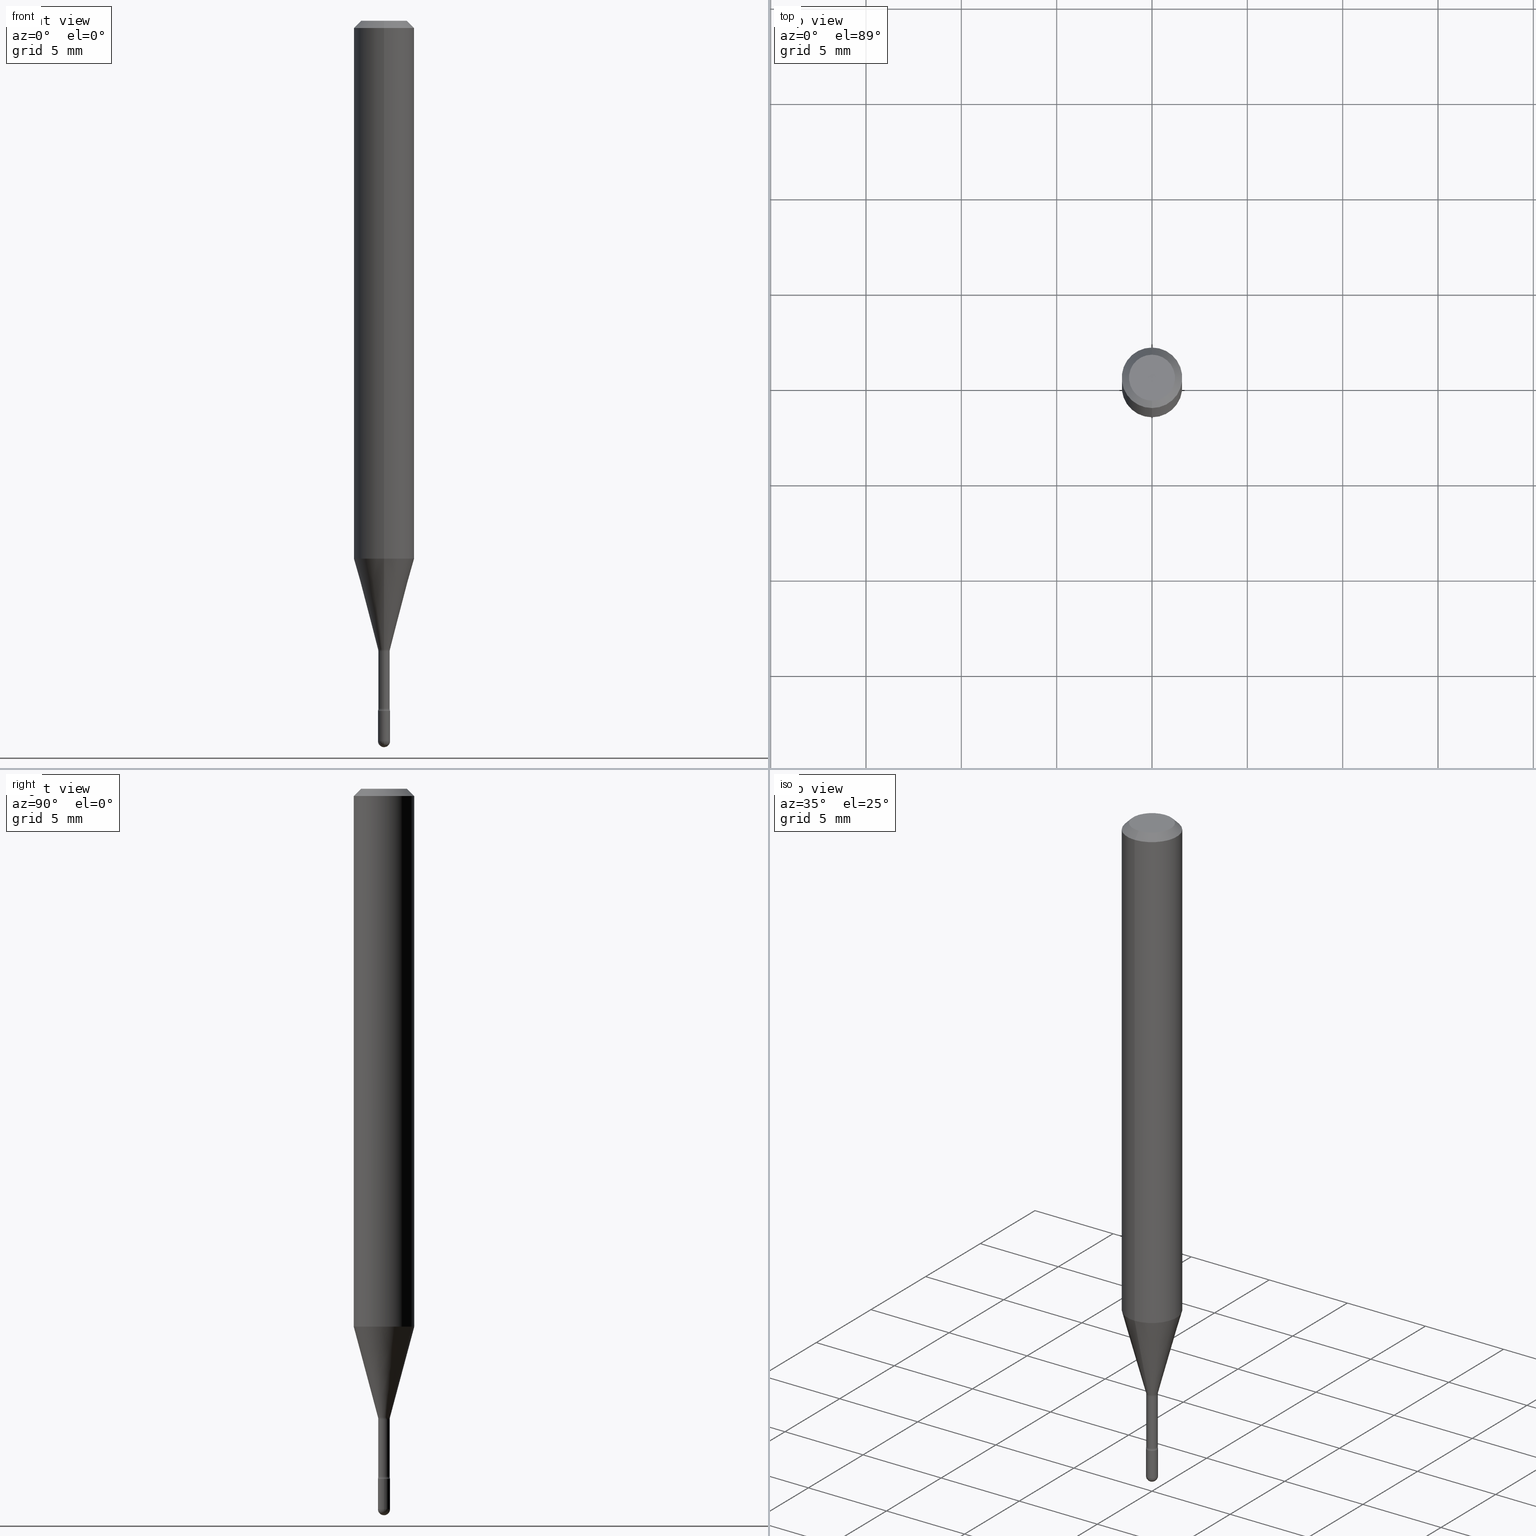
[diagram: canonical four-view strip — front | top / right | iso, engineering-drawing reading convention]
A machine part, canonical four-view strip (front | top / right | iso — engineering-drawing reading convention). The complete STEP part file that produces these views, byte-faithful:
ISO-10303-21;
HEADER;
FILE_DESCRIPTION (( 'STEP AP203' ),
    '1' );
FILE_NAME ('01586.STEP',
    '2024-04-09T20:07:38',
    ( '' ),
    ( '' ),
    'SwSTEP 2.0',
    'SolidWorks 2023',
    '' );
FILE_SCHEMA (( 'CONFIG_CONTROL_DESIGN' ));
ENDSEC;

DATA;
#1 = DIRECTION ( 'NONE',  ( -6.982962677686266711E-15, -1.000000000000000000, 3.491390890275590093E-15 ) ) ;
#2 = CARTESIAN_POINT ( 'NONE',  ( 4.440892098500895360E-16, 0.06249999999999610728, -1.110598421515880396 ) ) ;
#3 = DIRECTION ( 'NONE',  ( -6.982962677686265922E-15, -1.000000000000000000, 3.483106191921935554E-15 ) ) ;
#4 = ORIENTED_EDGE ( 'NONE', *, *, #453, .T. ) ;
#5 = DIMENSIONAL_EXPONENTS ( 1.000000000000000000, 0.000000000000000000, 0.000000000000000000, 0.000000000000000000, 0.000000000000000000, 0.000000000000000000, 0.000000000000000000 ) ;
#6 = CARTESIAN_POINT ( 'NONE',  ( -8.204981146277886678E-17, -0.01175000000000495266, -1.420316251501201332 ) ) ;
#7 = ORIENTED_EDGE ( 'NONE', *, *, #158, .T. ) ;
#8 = CIRCLE ( 'NONE', #242, 0.01500000000000002720 ) ;
#9 = CARTESIAN_POINT ( 'NONE',  ( 3.637634849200390463E-29, -5.193578491529179010E-15, -1.487499999999999822 ) ) ;
#10 = ORIENTED_EDGE ( 'NONE', *, *, #425, .F. ) ;
#11 = EDGE_CURVE ( 'NONE', #408, #24, #214, .T. ) ;
#12 = APPROVAL_PERSON_ORGANIZATION ( #198, #131, #325 ) ;
#13 = DIRECTION ( 'NONE',  ( -4.851104656540964275E-15, -0.7071067811865500152, -0.7071067811865450192 ) ) ;
#14 = DIRECTION ( 'NONE',  ( -1.000000000000000000, 6.982962677686266711E-15, -4.883557194083112901E-29 ) ) ;
#15 = CARTESIAN_POINT ( 'NONE',  ( -4.287811248607203282E-16, -0.06250000000000005551, -0.01499999999999986587 ) ) ;
#16 =( NAMED_UNIT ( * ) PLANE_ANGLE_UNIT ( ) SI_UNIT ( $, .RADIAN. ) );
#17 = ORIENTED_EDGE ( 'NONE', *, *, #522, .F. ) ;
#18 = AXIS2_PLACEMENT_3D ( 'NONE', #317, #497, #107 ) ;
#19 = LINE ( 'NONE', #306, #483 ) ;
#20 = TOROIDAL_SURFACE ( 'NONE', #402, 0.02674999999999999947, 0.01500000000000002373 ) ;
#21 = AXIS2_PLACEMENT_3D ( 'NONE', #187, #276, #531 ) ;
#22 = EDGE_CURVE ( 'NONE', #439, #367, #274, .T. ) ;
#23 = FACE_OUTER_BOUND ( 'NONE', #188, .T. ) ;
#24 = VERTEX_POINT ( 'NONE', #2 ) ;
#25 = DIRECTION ( 'NONE',  ( -6.982962677686269077E-15, -1.000000000000000000, 0.000000000000000000 ) ) ;
#26 = AXIS2_PLACEMENT_3D ( 'NONE', #523, #471, #476 ) ;
#27 = CARTESIAN_POINT ( 'NONE',  ( 3.473428794992355273E-29, -4.958879221801668349E-15, -1.420316251501201332 ) ) ;
#28 = VERTEX_POINT ( 'NONE', #144 ) ;
#29 = EDGE_LOOP ( 'NONE', ( #349, #398, #448, #264, #442 ) ) ;
#30 = CYLINDRICAL_SURFACE ( 'NONE', #428, 0.06250000000000000000 ) ;
#31 = TOROIDAL_SURFACE ( 'NONE', #128, 0.02675000000000001335, 0.01500000000000001679 ) ;
#32 = PERSON_AND_ORGANIZATION_ROLE ( 'design_owner' ) ;
#33 = CARTESIAN_POINT ( 'NONE',  ( 8.881784197004742293E-17, 0.01249999999999503418, -1.425000000000000266 ) ) ;
#34 = CALENDAR_DATE ( 2024, 9, 4 ) ;
#35 = DIRECTION ( 'NONE',  ( -6.982962677686265133E-15, -1.000000000000000000, 0.000000000000000000 ) ) ;
#36 = COORDINATED_UNIVERSAL_TIME_OFFSET ( 5, 0, .BEHIND. ) ;
#37 = CARTESIAN_POINT ( 'NONE',  ( 0.000000000000000000, 0.000000000000000000, 0.000000000000000000 ) ) ;
#38 = AXIS2_PLACEMENT_3D ( 'NONE', #383, #555, #120 ) ;
#39 = EDGE_CURVE ( 'NONE', #518, #511, #492, .T. ) ;
#40 = PERSON_AND_ORGANIZATION_ROLE ( 'classification_officer' ) ;
#41 = FACE_OUTER_BOUND ( 'NONE', #215, .T. ) ;
#42 = AXIS2_PLACEMENT_3D ( 'NONE', #83, #350, #3 ) ;
#43 = CARTESIAN_POINT ( 'NONE',  ( 3.183938729182273285E-29, -4.545820674074166863E-15, -1.301974787463811012 ) ) ;
#44 = DIRECTION ( 'NONE',  ( -2.445531966082285698E-29, 3.491390890275590093E-15, 1.000000000000000000 ) ) ;
#45 = FACE_OUTER_BOUND ( 'NONE', #374, .T. ) ;
#46 = EDGE_LOOP ( 'NONE', ( #300, #346, #401, #136 ) ) ;
#47 = ADVANCED_FACE ( 'NONE', ( #535 ), #20, .F. ) ;
#48 = CC_DESIGN_PERSON_AND_ORGANIZATION_ASSIGNMENT ( #68, #80, ( #153 ) ) ;
#49 = EDGE_LOOP ( 'NONE', ( #146, #305, #63, #468 ) ) ;
#50 = CIRCLE ( 'NONE', #376, 0.01250000000000000243 ) ;
#51 = SPHERICAL_SURFACE ( 'NONE', #73, 0.01249999999999996947 ) ;
#52 = APPROVAL_PERSON_ORGANIZATION ( #382, #69, #111 ) ;
#53 = CIRCLE ( 'NONE', #124, 0.06250000000000000000 ) ;
#54 = DIRECTION ( 'NONE',  ( 6.982962677686265922E-15, 1.000000000000000000, -3.483106191921935554E-15 ) ) ;
#55 =( CONVERSION_BASED_UNIT ( 'INCH', #318 ) LENGTH_UNIT ( ) NAMED_UNIT ( #5 ) );
#56 = EDGE_CURVE ( 'NONE', #275, #534, #499, .T. ) ;
#57 = DIRECTION ( 'NONE',  ( 1.000000000000000000, -6.982962677686292743E-15, 0.000000000000000000 ) ) ;
#58 = DIRECTION ( 'NONE',  ( -6.982962677686265922E-15, -1.000000000000000000, 0.000000000000000000 ) ) ;
#59 = ORIENTED_EDGE ( 'NONE', *, *, #243, .F. ) ;
#60 = AXIS2_PLACEMENT_3D ( 'NONE', #112, #505, #35 ) ;
#61 = DIRECTION ( 'NONE',  ( -2.445531966082285698E-29, 3.491390890275590093E-15, 1.000000000000000000 ) ) ;
#62 = CARTESIAN_POINT ( 'NONE',  ( 3.473428794992355273E-29, -4.958879221801668349E-15, -1.420316251501201332 ) ) ;
#63 = ORIENTED_EDGE ( 'NONE', *, *, #81, .T. ) ;
#64 = FACE_OUTER_BOUND ( 'NONE', #268, .T. ) ;
#65 = AXIS2_PLACEMENT_3D ( 'NONE', #390, #84, #251 ) ;
#66 = DATE_AND_TIME ( #34, #395 ) ;
#67 = LINE ( 'NONE', #70, #365 ) ;
#68 = PERSON_AND_ORGANIZATION ( #429, #552 ) ;
#69 = APPROVAL ( #554, 'UNSPECIFIED' ) ;
#70 = CARTESIAN_POINT ( 'NONE',  ( -8.204981146281360131E-17, -0.01174999999999999656, 5.190972418519841920E-16 ) ) ;
#71 = CIRCLE ( 'NONE', #185, 0.01250000000000000069 ) ;
#72 = CARTESIAN_POINT ( 'NONE',  ( 1.900701818158585969E-16, 0.02674999999999545450, -1.301974787463811012 ) ) ;
#73 = AXIS2_PLACEMENT_3D ( 'NONE', #271, #14, #311 ) ;
#74 = APPROVAL_DATE_TIME ( #164, #69 ) ;
#75 = AXIS2_PLACEMENT_3D ( 'NONE', #222, #417, #25 ) ;
#76 = ADVANCED_FACE ( 'NONE', ( #141 ), #358, .T. ) ;
#77 = DIRECTION ( 'NONE',  ( -6.982962677686265922E-15, -1.000000000000000000, 3.491390890275588910E-15 ) ) ;
#78 = EDGE_CURVE ( 'NONE', #530, #408, #327, .T. ) ;
#79 = VERTEX_POINT ( 'NONE', #266 ) ;
#80 = PERSON_AND_ORGANIZATION_ROLE ( 'creator' ) ;
#81 = EDGE_CURVE ( 'NONE', #530, #127, #484, .T. ) ;
#82 = AXIS2_PLACEMENT_3D ( 'NONE', #43, #247, #1 ) ;
#83 = CARTESIAN_POINT ( 'NONE',  ( 3.668297949123448778E-31, -5.237086335413414672E-17, -0.01500000000000008271 ) ) ;
#84 = DIRECTION ( 'NONE',  ( -2.445468806185136597E-29, 3.491481338843145583E-15, 1.000000000000000000 ) ) ;
#85 = AXIS2_PLACEMENT_3D ( 'NONE', #457, #109, #57 ) ;
#86 = ORIENTED_EDGE ( 'NONE', *, *, #501, .F. ) ;
#87 = PLANE ( 'NONE',  #206 ) ;
#88 = ORIENTED_EDGE ( 'NONE', *, *, #90, .T. ) ;
#89 = CIRCLE ( 'NONE', #380, 0.01174999999999999482 ) ;
#90 = EDGE_CURVE ( 'NONE', #127, #24, #53, .T. ) ;
#91 = CC_DESIGN_PERSON_AND_ORGANIZATION_ASSIGNMENT ( #557, #40, ( #189 ) ) ;
#92 = CYLINDRICAL_SURFACE ( 'NONE', #161, 0.01174999999999999656 ) ;
#93 = ORIENTED_EDGE ( 'NONE', *, *, #297, .T. ) ;
#94 = CARTESIAN_POINT ( 'NONE',  ( 3.668737688208442503E-29, -5.236456604015251240E-15, -1.500000000000000222 ) ) ;
#95 = AXIS2_PLACEMENT_3D ( 'NONE', #458, #558, #199 ) ;
#96 = CARTESIAN_POINT ( 'NONE',  ( -1.169113584055446105E-44, 1.669184350826100908E-30, 4.780733988912460139E-16 ) ) ;
#97 = DIRECTION ( 'NONE',  ( -6.982962677686265922E-15, -1.000000000000000000, 0.000000000000000000 ) ) ;
#98 = ORIENTED_EDGE ( 'NONE', *, *, #297, .F. ) ;
#99 = AXIS2_PLACEMENT_3D ( 'NONE', #564, #44, #400 ) ;
#100 = DIRECTION ( 'NONE',  ( 1.839019923739600315E-15, 0.2588190451025249583, 0.9659258262890670910 ) ) ;
#101 = DIRECTION ( 'NONE',  ( 1.000000000000000000, -6.982962677686292743E-15, 0.000000000000000000 ) ) ;
#102 = ORIENTED_EDGE ( 'NONE', *, *, #338, .T. ) ;
#103 = DIRECTION ( 'NONE',  ( -2.445531966082285698E-29, 3.491390890275590093E-15, 1.000000000000000000 ) ) ;
#104 = ADVANCED_FACE ( 'NONE', ( #449 ), #396, .T. ) ;
#105 = FACE_OUTER_BOUND ( 'NONE', #389, .T. ) ;
#106 = ORIENTED_EDGE ( 'NONE', *, *, #291, .T. ) ;
#107 = DIRECTION ( 'NONE',  ( -6.982962677686265133E-15, -1.000000000000000000, 0.000000000000000000 ) ) ;
#108 = ORIENTED_EDGE ( 'NONE', *, *, #356, .F. ) ;
#109 = DIRECTION ( 'NONE',  ( -2.445468806185136597E-29, 3.491481338843145583E-15, 1.000000000000000000 ) ) ;
#110 = PRODUCT_RELATED_PRODUCT_CATEGORY ( 'detail', '', ( #463 ) ) ;
#111 = APPROVAL_ROLE ( '' ) ;
#112 = CARTESIAN_POINT ( 'NONE',  ( 3.174526708052502707E-29, -4.532148335475136049E-15, -1.298092501787273090 ) ) ;
#113 = DIRECTION ( 'NONE',  ( -2.445531966082285698E-29, 3.491390890275590093E-15, 1.000000000000000000 ) ) ;
#114 = ORIENTED_EDGE ( 'NONE', *, *, #543, .T. ) ;
#115 = DATE_AND_TIME ( #336, #489 ) ;
#116 = EDGE_CURVE ( 'NONE', #534, #280, #50, .T. ) ;
#117 = CYLINDRICAL_SURFACE ( 'NONE', #434, 0.01250000000000000243 ) ;
#118 = AXIS2_PLACEMENT_3D ( 'NONE', #211, #528, #431 ) ;
#119 = COORDINATED_UNIVERSAL_TIME_OFFSET ( 5, 0, .BEHIND. ) ;
#120 = DIRECTION ( 'NONE',  ( -6.982962677686266711E-15, -1.000000000000000000, 3.491390890275590487E-15 ) ) ;
#121 = ORIENTED_EDGE ( 'NONE', *, *, #432, .F. ) ;
#122 = CARTESIAN_POINT ( 'NONE',  ( 3.473339087963991292E-29, -4.959007687372092628E-15, -1.420316251501201332 ) ) ;
#123 = AXIS2_PLACEMENT_3D ( 'NONE', #176, #406, #447 ) ;
#124 = AXIS2_PLACEMENT_3D ( 'NONE', #182, #61, #446 ) ;
#125 = DIRECTION ( 'NONE',  ( 1.000000000000000000, -6.982962677686265922E-15, 4.883557194083112340E-29 ) ) ;
#126 = DIRECTION ( 'NONE',  ( -2.445531966082285698E-29, 3.491390890275590093E-15, 1.000000000000000000 ) ) ;
#127 = VERTEX_POINT ( 'NONE', #231 ) ;
#128 = AXIS2_PLACEMENT_3D ( 'NONE', #302, #479, #397 ) ;
#129 = PLANE ( 'NONE',  #26 ) ;
#130 = ORIENTED_EDGE ( 'NONE', *, *, #453, .F. ) ;
#131 = APPROVAL ( #559, 'UNSPECIFIED' ) ;
#132 = FACE_OUTER_BOUND ( 'NONE', #482, .T. ) ;
#133 = EDGE_CURVE ( 'NONE', #280, #486, #260, .T. ) ;
#134 =( GEOMETRIC_REPRESENTATION_CONTEXT ( 3 ) GLOBAL_UNCERTAINTY_ASSIGNED_CONTEXT ( ( #233 ) ) GLOBAL_UNIT_ASSIGNED_CONTEXT ( ( #55, #16, #142 ) ) REPRESENTATION_CONTEXT ( 'NONE', 'WORKASPACE' ) );
#135 = MANIFOLD_SOLID_BREP ( 'Body-Move/Copy2[1]', #549 ) ;
#136 = ORIENTED_EDGE ( 'NONE', *, *, #392, .T. ) ;
#137 = DIRECTION ( 'NONE',  ( 1.000000000000000000, -6.982962677686292743E-15, 0.000000000000000000 ) ) ;
#138 = CARTESIAN_POINT ( 'NONE',  ( 3.668297949123448778E-31, -5.237086335413414672E-17, -0.01500000000000008271 ) ) ;
#139 = VECTOR ( 'NONE', #168, 39.37007874015748143 ) ;
#140 = VERTEX_POINT ( 'NONE', #372 ) ;
#141 = FACE_OUTER_BOUND ( 'NONE', #46, .T. ) ;
#142 =( NAMED_UNIT ( * ) SI_UNIT ( $, .STERADIAN. ) SOLID_ANGLE_UNIT ( ) );
#143 = ORIENTED_EDGE ( 'NONE', *, *, #303, .T. ) ;
#144 = CARTESIAN_POINT ( 'NONE',  ( 3.840629472727447874E-16, 0.04749999999999999362, -2.485923956665947374E-16 ) ) ;
#145 = MECHANICAL_CONTEXT ( 'NONE', #491, 'mechanical' ) ;
#146 = ORIENTED_EDGE ( 'NONE', *, *, #11, .F. ) ;
#147 = FACE_OUTER_BOUND ( 'NONE', #49, .T. ) ;
#148 = CARTESIAN_POINT ( 'NONE',  ( 3.484793048813820547E-29, -4.975360907851483175E-15, -1.425000000000000266 ) ) ;
#149 = ORIENTED_EDGE ( 'NONE', *, *, #291, .F. ) ;
#150 = CC_DESIGN_DATE_AND_TIME_ASSIGNMENT ( #379, #159, ( #189 ) ) ;
#151 = CARTESIAN_POINT ( 'NONE',  ( 3.637634849200391024E-29, -5.193578491529179010E-15, -1.487500000000000266 ) ) ;
#152 = CARTESIAN_POINT ( 'NONE',  ( 4.364351673553919652E-16, 0.06249999999999995143, -0.01500000000000030129 ) ) ;
#153 = PRODUCT_DEFINITION_FORMATION_WITH_SPECIFIED_SOURCE ( 'ANY', '', #463, .NOT_KNOWN. ) ;
#154 = AXIS2_PLACEMENT_3D ( 'NONE', #454, #103, #443 ) ;
#155 = COORDINATED_UNIVERSAL_TIME_OFFSET ( 5, 0, .BEHIND. ) ;
#156 = CARTESIAN_POINT ( 'NONE',  ( 3.184020961775939408E-29, -4.545702912319647815E-15, -1.301974787463811012 ) ) ;
#157 = ORIENTED_EDGE ( 'NONE', *, *, #22, .T. ) ;
#158 = EDGE_CURVE ( 'NONE', #530, #212, #480, .T. ) ;
#159 = DATE_TIME_ROLE ( 'classification_date' ) ;
#160 = DIRECTION ( 'NONE',  ( -2.445531966082285698E-29, 3.491390890275590093E-15, 1.000000000000000000 ) ) ;
#161 = AXIS2_PLACEMENT_3D ( 'NONE', #246, #526, #347 ) ;
#162 = CARTESIAN_POINT ( 'NONE',  ( 3.484793048813820547E-29, -4.975360907851483175E-15, -1.425000000000000266 ) ) ;
#163 = CC_DESIGN_APPROVAL ( #69, ( #153 ) ) ;
#164 = DATE_AND_TIME ( #289, #357 ) ;
#165 = DIRECTION ( 'NONE',  ( 1.000000000000000000, -7.105427357601001070E-15, 4.926314400866594690E-29 ) ) ;
#166 = CC_DESIGN_DATE_AND_TIME_ASSIGNMENT ( #115, #515, ( #248 ) ) ;
#167 = AXIS2_PLACEMENT_3D ( 'NONE', #203, #348, #343 ) ;
#168 = DIRECTION ( 'NONE',  ( 4.937700262164548042E-15, 0.7071067811865451302, -0.7071067811865499042 ) ) ;
#169 = DIRECTION ( 'NONE',  ( 6.982962677686265922E-15, 1.000000000000000000, 0.000000000000000000 ) ) ;
#170 = EDGE_CURVE ( 'NONE', #127, #511, #19, .T. ) ;
#171 = ORIENTED_EDGE ( 'NONE', *, *, #133, .F. ) ;
#172 = VECTOR ( 'NONE', #331, 39.37007874015748143 ) ;
#173 = DIRECTION ( 'NONE',  ( -6.982962677686266711E-15, -1.000000000000000000, 3.491390890275590093E-15 ) ) ;
#174 = VECTOR ( 'NONE', #13, 39.37007874015748143 ) ;
#175 = ORIENTED_EDGE ( 'NONE', *, *, #541, .F. ) ;
#176 = CARTESIAN_POINT ( 'NONE',  ( 3.484793048813820547E-29, -4.975360907851483175E-15, -1.425000000000000266 ) ) ;
#177 = ORIENTED_EDGE ( 'NONE', *, *, #399, .F. ) ;
#178 = AXIS2_PLACEMENT_3D ( 'NONE', #138, #184, #362 ) ;
#179 = AXIS2_PLACEMENT_3D ( 'NONE', #219, #322, #101 ) ;
#180 = FACE_OUTER_BOUND ( 'NONE', #210, .T. ) ;
#181 = CARTESIAN_POINT ( 'NONE',  ( -3.773273898774340269E-16, -0.04749999999999999362, 8.308973890958629777E-17 ) ) ;
#182 = CARTESIAN_POINT ( 'NONE',  ( 2.716003941297613379E-29, -3.877533211634993835E-15, -1.110598421515880174 ) ) ;
#183 = ADVANCED_FACE ( 'NONE', ( #180 ), #226, .T. ) ;
#184 = DIRECTION ( 'NONE',  ( -2.445531966082285698E-29, 3.491390890275590093E-15, 1.000000000000000000 ) ) ;
#185 = AXIS2_PLACEMENT_3D ( 'NONE', #162, #237, #335 ) ;
#186 = ORIENTED_EDGE ( 'NONE', *, *, #244, .T. ) ;
#187 = CARTESIAN_POINT ( 'NONE',  ( 3.668297949123448778E-31, -5.237086335413414672E-17, -0.01500000000000008271 ) ) ;
#188 = EDGE_LOOP ( 'NONE', ( #98, #256, #413, #323 ) ) ;
#189 = SECURITY_CLASSIFICATION ( '', '', #422 ) ;
#190 = DIRECTION ( 'NONE',  ( -2.445531966082285698E-29, 3.491390890275590093E-15, 1.000000000000000000 ) ) ;
#191 = EDGE_CURVE ( 'NONE', #534, #79, #368, .T. ) ;
#192 = CC_DESIGN_PERSON_AND_ORGANIZATION_ASSIGNMENT ( #467, #32, ( #463 ) ) ;
#193 = ORIENTED_EDGE ( 'NONE', *, *, #329, .T. ) ;
#194 = CARTESIAN_POINT ( 'NONE',  ( -8.204981146278178803E-17, -0.01175000000000454674, -1.301974787463811012 ) ) ;
#195 = CARTESIAN_POINT ( 'NONE',  ( 3.484883051667257470E-29, -4.975232018642717302E-15, -1.425000000000000266 ) ) ;
#196 = CALENDAR_DATE ( 2024, 9, 4 ) ;
#197 = DIRECTION ( 'NONE',  ( -2.445531966082285698E-29, 3.491390890275590093E-15, 1.000000000000000000 ) ) ;
#198 = PERSON_AND_ORGANIZATION ( #429, #552 ) ;
#199 = DIRECTION ( 'NONE',  ( -6.982962677686265133E-15, -1.000000000000000000, 0.000000000000000000 ) ) ;
#200 = CARTESIAN_POINT ( 'NONE',  ( -1.169113584055446105E-44, 1.669184350826100908E-30, 4.780733988912460139E-16 ) ) ;
#201 = APPROVAL_DATE_TIME ( #285, #418 ) ;
#202 = CIRCLE ( 'NONE', #178, 0.06250000000000000000 ) ;
#203 = CARTESIAN_POINT ( 'NONE',  ( 2.024012138521078874E-45, -2.888739930047974464E-31, -8.275132837850420749E-17 ) ) ;
#204 = ADVANCED_FACE ( 'NONE', ( #147 ), #236, .T. ) ;
#205 = FACE_OUTER_BOUND ( 'NONE', #416, .T. ) ;
#206 = AXIS2_PLACEMENT_3D ( 'NONE', #299, #435, #207 ) ;
#207 = DIRECTION ( 'NONE',  ( 6.982962677686265922E-15, 1.000000000000000000, -3.491390890275590093E-15 ) ) ;
#208 = ADVANCED_FACE ( 'NONE', ( #64 ), #548, .T. ) ;
#209 = FACE_OUTER_BOUND ( 'NONE', #213, .T. ) ;
#210 = EDGE_LOOP ( 'NONE', ( #17, #238, #452, #430 ) ) ;
#211 = CARTESIAN_POINT ( 'NONE',  ( 2.716003941297613379E-29, -3.877533211634993835E-15, -1.110598421515880174 ) ) ;
#212 = VERTEX_POINT ( 'NONE', #194 ) ;
#213 = EDGE_LOOP ( 'NONE', ( #414, #309, #514, #314 ) ) ;
#214 = LINE ( 'NONE', #487, #321 ) ;
#215 = EDGE_LOOP ( 'NONE', ( #355, #143, #342, #500, #503 ) ) ;
#216 = AXIS2_PLACEMENT_3D ( 'NONE', #122, #126, #173 ) ;
#217 = VECTOR ( 'NONE', #375, 39.37007874015748143 ) ;
#218 = EDGE_CURVE ( 'NONE', #439, #212, #67, .T. ) ;
#219 = CARTESIAN_POINT ( 'NONE',  ( 3.637634849200390463E-29, -5.193578491529179010E-15, -1.487499999999999822 ) ) ;
#220 = CARTESIAN_POINT ( 'NONE',  ( 3.184020961775939408E-29, -4.545702912319647815E-15, -1.301974787463811012 ) ) ;
#221 = ORIENTED_EDGE ( 'NONE', *, *, #81, .F. ) ;
#222 = CARTESIAN_POINT ( 'NONE',  ( -1.867942516280757616E-16, -0.02675000000000454445, -1.301974787463811012 ) ) ;
#223 = DIRECTION ( 'NONE',  ( 1.000000000000000000, -6.982962677686265922E-15, 4.876176775795935793E-29 ) ) ;
#224 = CIRCLE ( 'NONE', #272, 0.01250000000000000069 ) ;
#225 = EDGE_LOOP ( 'NONE', ( #130, #445, #477, #108 ) ) ;
#226 = CYLINDRICAL_SURFACE ( 'NONE', #249, 0.06250000000000000000 ) ;
#227 = ADVANCED_FACE ( 'NONE', ( #510 ), #117, .T. ) ;
#228 = CARTESIAN_POINT ( 'NONE',  ( 4.440892098500625669E-16, 0.06250000000000000000, 2.598614682490216824E-16 ) ) ;
#229 = EDGE_LOOP ( 'NONE', ( #59, #193, #273, #344 ) ) ;
#230 = AXIS2_PLACEMENT_3D ( 'NONE', #62, #536, #97 ) ;
#231 = CARTESIAN_POINT ( 'NONE',  ( -4.364351673553644537E-16, -0.06250000000000387190, -1.110598421515879952 ) ) ;
#232 = CALENDAR_DATE ( 2024, 9, 4 ) ;
#233 = UNCERTAINTY_MEASURE_WITH_UNIT (LENGTH_MEASURE( 1.000000000000000082E-05 ), #55, 'distance_accuracy_value', 'NONE');
#234 = DIRECTION ( 'NONE',  ( -2.445468806185136597E-29, 3.491481338843145583E-15, 1.000000000000000000 ) ) ;
#235 = PERSON_AND_ORGANIZATION_ROLE ( 'design_supplier' ) ;
#236 = CONICAL_SURFACE ( 'NONE', #18, 0.01226111260566398187, 0.2617993877991502960 ) ;
#237 = DIRECTION ( 'NONE',  ( -2.445468806185136597E-29, 3.491481338843145583E-15, 1.000000000000000000 ) ) ;
#238 = ORIENTED_EDGE ( 'NONE', *, *, #465, .T. ) ;
#239 = DIRECTION ( 'NONE',  ( 7.105427357600997914E-15, 1.000000000000000000, 0.000000000000000000 ) ) ;
#240 = CARTESIAN_POINT ( 'NONE',  ( -0.01250000000000000243, 8.881784197001254049E-17, -6.148668862818633278E-31 ) ) ;
#241 = SHAPE_DEFINITION_REPRESENTATION ( #287, #563 ) ;
#242 = AXIS2_PLACEMENT_3D ( 'NONE', #72, #283, #239 ) ;
#243 = EDGE_CURVE ( 'NONE', #408, #530, #307, .T. ) ;
#244 = EDGE_CURVE ( 'NONE', #547, #79, #71, .T. ) ;
#245 = AXIS2_PLACEMENT_3D ( 'NONE', #310, #539, #54 ) ;
#246 = CARTESIAN_POINT ( 'NONE',  ( -1.169113584055446105E-44, 1.669184350826100908E-30, 4.780733988912460139E-16 ) ) ;
#247 = DIRECTION ( 'NONE',  ( -2.445531966082285698E-29, 3.491390890275590093E-15, 1.000000000000000000 ) ) ;
#248 = PRODUCT_DEFINITION ( 'UNKNOWN', '', #153, #538 ) ;
#249 = AXIS2_PLACEMENT_3D ( 'NONE', #96, #315, #262 ) ;
#250 = CLOSED_SHELL ( 'NONE', ( #47, #469, #377, #104, #269, #337, #204, #183, #76, #384, #455, #475, #409, #437 ) ) ;
#251 = DIRECTION ( 'NONE',  ( 1.000000000000000000, -6.982962677686267499E-15, 4.876176775795936353E-29 ) ) ;
#252 = VERTEX_POINT ( 'NONE', #33 ) ;
#253 = CC_DESIGN_APPROVAL ( #131, ( #248 ) ) ;
#254 = EDGE_LOOP ( 'NONE', ( #88, #537, #86, #490 ) ) ;
#255 = FACE_OUTER_BOUND ( 'NONE', #332, .T. ) ;
#256 = ORIENTED_EDGE ( 'NONE', *, *, #425, .T. ) ;
#257 = CIRCLE ( 'NONE', #167, 0.04749999999999999362 ) ;
#258 = EDGE_CURVE ( 'NONE', #419, #212, #334, .T. ) ;
#259 = LINE ( 'NONE', #228, #340 ) ;
#260 = CIRCLE ( 'NONE', #85, 0.01250000000000000243 ) ;
#261 = EDGE_LOOP ( 'NONE', ( #520, #527, #293, #404 ) ) ;
#262 = DIRECTION ( 'NONE',  ( -6.982962677686265922E-15, -1.000000000000000000, 3.491390890275588910E-15 ) ) ;
#263 = DIRECTION ( 'NONE',  ( 1.000000000000000000, -6.982962677686292743E-15, 0.000000000000000000 ) ) ;
#264 = ORIENTED_EDGE ( 'NONE', *, *, #191, .T. ) ;
#265 = APPROVAL_PERSON_ORGANIZATION ( #330, #418, #341 ) ;
#266 = CARTESIAN_POINT ( 'NONE',  ( 0.01250000000000000069, -5.062647941322562298E-15, -1.425000000000000266 ) ) ;
#267 = DIRECTION ( 'NONE',  ( 0.000000000000000000, 0.000000000000000000, 1.000000000000000000 ) ) ;
#268 = EDGE_LOOP ( 'NONE', ( #10, #93, #363, #171 ) ) ;
#269 = ADVANCED_FACE ( 'NONE', ( #381 ), #30, .T. ) ;
#270 = DIRECTION ( 'NONE',  ( -2.445531966082285698E-29, 3.491390890275590093E-15, 1.000000000000000000 ) ) ;
#271 = CARTESIAN_POINT ( 'NONE',  ( 3.637634849200391024E-29, -5.193578491529179010E-15, -1.487500000000000266 ) ) ;
#272 = AXIS2_PLACEMENT_3D ( 'NONE', #195, #113, #328 ) ;
#273 = ORIENTED_EDGE ( 'NONE', *, *, #258, .T. ) ;
#274 = CIRCLE ( 'NONE', #282, 0.01500000000000001853 ) ;
#275 = VERTEX_POINT ( 'NONE', #286 ) ;
#276 = DIRECTION ( 'NONE',  ( 2.445531966082285698E-29, -3.491390890275590093E-15, -1.000000000000000000 ) ) ;
#277 = DIRECTION ( 'NONE',  ( 6.982962677686266711E-15, 1.000000000000000000, 0.000000000000000000 ) ) ;
#278 = COORDINATED_UNIVERSAL_TIME_OFFSET ( 5, 0, .BEHIND. ) ;
#279 = DIRECTION ( 'NONE',  ( -6.982962677686265922E-15, -1.000000000000000000, 0.000000000000000000 ) ) ;
#280 = VERTEX_POINT ( 'NONE', #553 ) ;
#281 = CIRCLE ( 'NONE', #42, 0.06250000000000000000 ) ;
#282 = AXIS2_PLACEMENT_3D ( 'NONE', #405, #361, #394 ) ;
#283 = DIRECTION ( 'NONE',  ( 1.000000000000000000, -7.105427357601001070E-15, 4.926314400866594690E-29 ) ) ;
#284 = VERTEX_POINT ( 'NONE', #550 ) ;
#285 = DATE_AND_TIME ( #232, #561 ) ;
#286 = CARTESIAN_POINT ( 'NONE',  ( -8.881784196997603102E-17, -0.01250000000000517884, -1.487499999999999822 ) ) ;
#287 = PRODUCT_DEFINITION_SHAPE ( 'NONE', 'NONE',  #248 ) ;
#288 = ORIENTED_EDGE ( 'NONE', *, *, #22, .F. ) ;
#289 = CALENDAR_DATE ( 2024, 9, 4 ) ;
#290 = CARTESIAN_POINT ( 'NONE',  ( 8.348877145181173506E-17, 0.01174999999999999656, 4.370495559305079345E-16 ) ) ;
#291 = EDGE_CURVE ( 'NONE', #252, #367, #224, .T. ) ;
#292 = CYLINDRICAL_SURFACE ( 'NONE', #65, 0.01250000000000000243 ) ;
#293 = ORIENTED_EDGE ( 'NONE', *, *, #543, .F. ) ;
#294 = DIRECTION ( 'NONE',  ( -2.445531966082285698E-29, 3.491390890275590093E-15, 1.000000000000000000 ) ) ;
#295 = CARTESIAN_POINT ( 'NONE',  ( -0.01250000000000000243, -4.995651857720318490E-15, -1.487499999999999822 ) ) ;
#296 = ORIENTED_EDGE ( 'NONE', *, *, #432, .T. ) ;
#297 = EDGE_CURVE ( 'NONE', #524, #275, #474, .T. ) ;
#298 = VECTOR ( 'NONE', #545, 39.37007874015748143 ) ;
#299 = CARTESIAN_POINT ( 'NONE',  ( 3.316907271900976096E-16, 0.04749999999999999362, 3.181996796828036098E-17 ) ) ;
#300 = ORIENTED_EDGE ( 'NONE', *, *, #39, .F. ) ;
#301 = CIRCLE ( 'NONE', #123, 0.01250000000000000069 ) ;
#302 = CARTESIAN_POINT ( 'NONE',  ( 3.473339087963991292E-29, -4.959007687372092628E-15, -1.420316251501201332 ) ) ;
#303 = EDGE_CURVE ( 'NONE', #486, #547, #513, .T. ) ;
#304 = PLANE ( 'NONE',  #478 ) ;
#305 = ORIENTED_EDGE ( 'NONE', *, *, #243, .T. ) ;
#306 = CARTESIAN_POINT ( 'NONE',  ( -4.364351673553916201E-16, -0.06250000000000000000, 6.962853295334703947E-16 ) ) ;
#307 = CIRCLE ( 'NONE', #60, 0.01226111260566398187 ) ;
#308 = DIRECTION ( 'NONE',  ( -2.438088387897960049E-29, 3.491481338843145188E-15, 1.000000000000000000 ) ) ;
#309 = ORIENTED_EDGE ( 'NONE', *, *, #541, .T. ) ;
#310 = CARTESIAN_POINT ( 'NONE',  ( 3.668297949123448778E-31, -5.237086335413414672E-17, -0.01500000000000008271 ) ) ;
#311 = DIRECTION ( 'NONE',  ( 6.982962677686266711E-15, 1.000000000000000000, 0.000000000000000000 ) ) ;
#312 = TOROIDAL_SURFACE ( 'NONE', #216, 0.02675000000000001335, 0.01500000000000001679 ) ;
#313 = CC_DESIGN_PERSON_AND_ORGANIZATION_ASSIGNMENT ( #509, #426, ( #248 ) ) ;
#314 = ORIENTED_EDGE ( 'NONE', *, *, #258, .F. ) ;
#315 = DIRECTION ( 'NONE',  ( -2.445531966082285698E-29, 3.491390890275590093E-15, 1.000000000000000000 ) ) ;
#316 = ORIENTED_EDGE ( 'NONE', *, *, #329, .F. ) ;
#317 = CARTESIAN_POINT ( 'NONE',  ( 3.174526708052502707E-29, -4.532148335475136049E-15, -1.298092501787273090 ) ) ;
#318 = LENGTH_MEASURE_WITH_UNIT ( LENGTH_MEASURE( 0.02539999999999999897 ), #373 );
#319 = CONICAL_SURFACE ( 'NONE', #95, 0.01226111260566398187, 0.2617993877991502960 ) ;
#320 = ORIENTED_EDGE ( 'NONE', *, *, #496, .T. ) ;
#321 = VECTOR ( 'NONE', #100, 39.37007874015748143 ) ;
#322 = DIRECTION ( 'NONE',  ( -2.445468806185136597E-29, 3.491481338843145583E-15, 1.000000000000000000 ) ) ;
#323 = ORIENTED_EDGE ( 'NONE', *, *, #56, .F. ) ;
#324 = MANIFOLD_SOLID_BREP ( 'Body-Move/Copy2[2]', #250 ) ;
#325 = APPROVAL_ROLE ( '' ) ;
#326 = CIRCLE ( 'NONE', #230, 0.01174999999999999482 ) ;
#327 = CIRCLE ( 'NONE', #154, 0.01226111260566398187 ) ;
#328 = DIRECTION ( 'NONE',  ( -6.982962677686265133E-15, -1.000000000000000000, 0.000000000000000000 ) ) ;
#329 = EDGE_CURVE ( 'NONE', #408, #419, #8, .T. ) ;
#330 = PERSON_AND_ORGANIZATION ( #429, #552 ) ;
#331 = DIRECTION ( 'NONE',  ( -2.445468806185136877E-29, 3.491481338843145188E-15, 1.000000000000000000 ) ) ;
#332 = EDGE_LOOP ( 'NONE', ( #121, #149 ) ) ;
#333 = APPROVAL_STATUS ( 'not_yet_approved' ) ;
#334 = CIRCLE ( 'NONE', #556, 0.01175000000000000176 ) ;
#335 = DIRECTION ( 'NONE',  ( 1.000000000000000000, -6.982962677686294321E-15, 0.000000000000000000 ) ) ;
#336 = CALENDAR_DATE ( 2024, 9, 4 ) ;
#337 = ADVANCED_FACE ( 'NONE', ( #424 ), #319, .T. ) ;
#338 = EDGE_CURVE ( 'NONE', #28, #518, #459, .T. ) ;
#339 = DIRECTION ( 'NONE',  ( -2.445531966082285698E-29, 3.491390890275590093E-15, 1.000000000000000000 ) ) ;
#340 = VECTOR ( 'NONE', #546, 39.37007874015748143 ) ;
#341 = APPROVAL_ROLE ( '' ) ;
#342 = ORIENTED_EDGE ( 'NONE', *, *, #496, .F. ) ;
#343 = DIRECTION ( 'NONE',  ( -6.982962677686266711E-15, -1.000000000000000000, 3.491390890275590487E-15 ) ) ;
#344 = ORIENTED_EDGE ( 'NONE', *, *, #158, .F. ) ;
#345 = CIRCLE ( 'NONE', #508, 0.01500000000000001853 ) ;
#346 = ORIENTED_EDGE ( 'NONE', *, *, #338, .F. ) ;
#347 = DIRECTION ( 'NONE',  ( -6.982962677686265922E-15, -1.000000000000000000, 3.491390890275588121E-15 ) ) ;
#348 = DIRECTION ( 'NONE',  ( -2.445531966082285698E-29, 3.491390890275590093E-15, 1.000000000000000000 ) ) ;
#349 = ORIENTED_EDGE ( 'NONE', *, *, #303, .F. ) ;
#350 = DIRECTION ( 'NONE',  ( -2.445531966082285698E-29, 3.491390890275590093E-15, 1.000000000000000000 ) ) ;
#351 = ORIENTED_EDGE ( 'NONE', *, *, #90, .F. ) ;
#352 = CIRCLE ( 'NONE', #450, 0.01249999999999996947 ) ;
#353 = EDGE_CURVE ( 'NONE', #284, #419, #427, .T. ) ;
#354 = DIRECTION ( 'NONE',  ( 7.105427357600998703E-15, 1.000000000000000000, 0.000000000000000000 ) ) ;
#355 = ORIENTED_EDGE ( 'NONE', *, *, #133, .T. ) ;
#356 = EDGE_CURVE ( 'NONE', #28, #140, #378, .T. ) ;
#357 = LOCAL_TIME ( 16, 7, 38.00000000000000000, #506 ) ;
#358 = CONICAL_SURFACE ( 'NONE', #245, 0.06250000000000000000, 0.7853981633974483900 ) ;
#359 = DIRECTION ( 'NONE',  ( -2.445531966082285698E-29, 3.491390890275590093E-15, 1.000000000000000000 ) ) ;
#360 = ORIENTED_EDGE ( 'NONE', *, *, #399, .T. ) ;
#361 = DIRECTION ( 'NONE',  ( -1.000000000000000000, 6.982962677686265922E-15, -4.883557194083112340E-29 ) ) ;
#362 = DIRECTION ( 'NONE',  ( -6.982962677686265922E-15, -1.000000000000000000, 3.483106191921935554E-15 ) ) ;
#363 = ORIENTED_EDGE ( 'NONE', *, *, #562, .F. ) ;
#364 = CARTESIAN_POINT ( 'NONE',  ( 3.183938729182273285E-29, -4.545820674074166863E-15, -1.301974787463811012 ) ) ;
#365 = VECTOR ( 'NONE', #160, 39.37007874015748143 ) ;
#366 = CARTESIAN_POINT ( 'NONE',  ( -4.364351673553912750E-16, -0.06250000000000005551, -0.01499999999999986587 ) ) ;
#367 = VERTEX_POINT ( 'NONE', #470 ) ;
#368 = LINE ( 'NONE', #415, #298 ) ;
#369 = DIRECTION ( 'NONE',  ( -2.445468806185136597E-29, 3.491481338843145583E-15, 1.000000000000000000 ) ) ;
#370 = CIRCLE ( 'NONE', #462, 0.01250000000000000243 ) ;
#371 = EDGE_LOOP ( 'NONE', ( #177, #473, #157, #296 ) ) ;
#372 = CARTESIAN_POINT ( 'NONE',  ( 4.440892098500899305E-16, 0.06249999999999995143, -0.01500000000000030129 ) ) ;
#373 =( LENGTH_UNIT ( ) NAMED_UNIT ( * ) SI_UNIT ( $, .METRE. ) );
#374 = EDGE_LOOP ( 'NONE', ( #316, #466, #7, #114 ) ) ;
#375 = DIRECTION ( 'NONE',  ( -1.807323732225330139E-15, -0.2588190451025181860, 0.9659258262890689783 ) ) ;
#376 = AXIS2_PLACEMENT_3D ( 'NONE', #407, #234, #137 ) ;
#377 = ADVANCED_FACE ( 'NONE', ( #132 ), #31, .F. ) ;
#378 = LINE ( 'NONE', #152, #139 ) ;
#379 = DATE_AND_TIME ( #196, #540 ) ;
#380 = AXIS2_PLACEMENT_3D ( 'NONE', #27, #359, #403 ) ;
#381 = FACE_OUTER_BOUND ( 'NONE', #254, .T. ) ;
#382 = PERSON_AND_ORGANIZATION ( #429, #552 ) ;
#383 = CARTESIAN_POINT ( 'NONE',  ( 2.024012138521078874E-45, -2.888739930047974464E-31, -8.275132837850420749E-17 ) ) ;
#384 = ADVANCED_FACE ( 'NONE', ( #205 ), #87, .F. ) ;
#385 = VECTOR ( 'NONE', #420, 39.37007874015748143 ) ;
#386 = DIRECTION ( 'NONE',  ( -7.105427357601001070E-15, -1.000000000000000000, 0.000000000000000000 ) ) ;
#387 = CIRCLE ( 'NONE', #436, 0.01175000000000000176 ) ;
#388 = CYLINDRICAL_SURFACE ( 'NONE', #99, 0.01174999999999999656 ) ;
#389 = EDGE_LOOP ( 'NONE', ( #320, #186 ) ) ;
#390 = CARTESIAN_POINT ( 'NONE',  ( 0.000000000000000000, 0.000000000000000000, 0.000000000000000000 ) ) ;
#391 = AXIS2_PLACEMENT_3D ( 'NONE', #507, #464, #386 ) ;
#392 = EDGE_CURVE ( 'NONE', #140, #511, #281, .T. ) ;
#393 = CARTESIAN_POINT ( 'NONE',  ( 3.637634849200391024E-29, -5.193578491529179010E-15, -1.487500000000000266 ) ) ;
#394 = DIRECTION ( 'NONE',  ( -6.982962677686265133E-15, -1.000000000000000000, 0.000000000000000000 ) ) ;
#395 = LOCAL_TIME ( 16, 7, 38.00000000000000000, #155 ) ;
#396 = CONICAL_SURFACE ( 'NONE', #21, 0.06250000000000000000, 0.7853981633974483900 ) ;
#397 = DIRECTION ( 'NONE',  ( -6.982962677686266711E-15, -1.000000000000000000, 3.491390890275590093E-15 ) ) ;
#398 = ORIENTED_EDGE ( 'NONE', *, *, #562, .T. ) ;
#399 = EDGE_CURVE ( 'NONE', #284, #252, #345, .T. ) ;
#400 = DIRECTION ( 'NONE',  ( -6.982962677686265922E-15, -1.000000000000000000, 3.491390890275588121E-15 ) ) ;
#401 = ORIENTED_EDGE ( 'NONE', *, *, #356, .T. ) ;
#402 = AXIS2_PLACEMENT_3D ( 'NONE', #364, #270, #410 ) ;
#403 = DIRECTION ( 'NONE',  ( -6.982962677686265922E-15, -1.000000000000000000, 0.000000000000000000 ) ) ;
#404 = ORIENTED_EDGE ( 'NONE', *, *, #218, .F. ) ;
#405 = CARTESIAN_POINT ( 'NONE',  ( -1.867942516280729759E-16, -0.02675000000000497119, -1.420316251501201332 ) ) ;
#406 = DIRECTION ( 'NONE',  ( -2.445468806185136597E-29, 3.491481338843145583E-15, 1.000000000000000000 ) ) ;
#407 = CARTESIAN_POINT ( 'NONE',  ( 3.637634849200390463E-29, -5.193578491529179010E-15, -1.487499999999999822 ) ) ;
#408 = VERTEX_POINT ( 'NONE', #566 ) ;
#409 = ADVANCED_FACE ( 'NONE', ( #209 ), #92, .T. ) ;
#410 = DIRECTION ( 'NONE',  ( -6.982962677686266711E-15, -1.000000000000000000, 3.491390890275590093E-15 ) ) ;
#411 = CIRCLE ( 'NONE', #421, 0.01250000000000000069 ) ;
#412 = CARTESIAN_POINT ( 'NONE',  ( 0.000000000000000000, 0.000000000000000000, 0.000000000000000000 ) ) ;
#413 = ORIENTED_EDGE ( 'NONE', *, *, #116, .F. ) ;
#414 = ORIENTED_EDGE ( 'NONE', *, *, #353, .F. ) ;
#415 = CARTESIAN_POINT ( 'NONE',  ( 0.01250000000000000243, -8.728703347107835853E-17, 6.095220969744921493E-31 ) ) ;
#416 = EDGE_LOOP ( 'NONE', ( #102, #4 ) ) ;
#417 = DIRECTION ( 'NONE',  ( -1.000000000000000000, 6.982962677686265922E-15, -4.883557194083112340E-29 ) ) ;
#418 = APPROVAL ( #333, 'UNSPECIFIED' ) ;
#419 = VERTEX_POINT ( 'NONE', #521 ) ;
#420 = DIRECTION ( 'NONE',  ( -2.445531966082285698E-29, 3.491390890275590093E-15, 1.000000000000000000 ) ) ;
#421 = AXIS2_PLACEMENT_3D ( 'NONE', #438, #294, #472 ) ;
#422 = SECURITY_CLASSIFICATION_LEVEL ( 'unclassified' ) ;
#423 = DIRECTION ( 'NONE',  ( 1.000000000000000000, -6.982962677686267499E-15, 4.876176775795936353E-29 ) ) ;
#424 = FACE_OUTER_BOUND ( 'NONE', #494, .T. ) ;
#425 = EDGE_CURVE ( 'NONE', #524, #280, #352, .T. ) ;
#426 = PERSON_AND_ORGANIZATION_ROLE ( 'creator' ) ;
#427 = LINE ( 'NONE', #290, #385 ) ;
#428 = AXIS2_PLACEMENT_3D ( 'NONE', #200, #339, #77 ) ;
#429 = PERSON ( 'UNSPECIFIED', 'UNSPECIFIED', 'UNSPECIFIED', ('UNSPECIFIED'), ('UNSPECIFIED'), ('UNSPECIFIED') ) ;
#430 = ORIENTED_EDGE ( 'NONE', *, *, #392, .F. ) ;
#431 = DIRECTION ( 'NONE',  ( -6.982962677686265922E-15, -1.000000000000000000, 4.370956789862821150E-15 ) ) ;
#432 = EDGE_CURVE ( 'NONE', #367, #252, #411, .T. ) ;
#433 = CARTESIAN_POINT ( 'NONE',  ( 1.900701818158615798E-16, 0.02674999999999505204, -1.420316251501201332 ) ) ;
#434 = AXIS2_PLACEMENT_3D ( 'NONE', #37, #460, #423 ) ;
#435 = DIRECTION ( 'NONE',  ( 2.445531966082285417E-29, -3.491390890275590093E-15, -1.000000000000000000 ) ) ;
#436 = AXIS2_PLACEMENT_3D ( 'NONE', #220, #485, #58 ) ;
#437 = ADVANCED_FACE ( 'NONE', ( #45 ), #498, .F. ) ;
#438 = CARTESIAN_POINT ( 'NONE',  ( 3.484883051667257470E-29, -4.975232018642717302E-15, -1.425000000000000266 ) ) ;
#439 = VERTEX_POINT ( 'NONE', #6 ) ;
#440 = FACE_OUTER_BOUND ( 'NONE', #261, .T. ) ;
#441 = APPLICATION_PROTOCOL_DEFINITION ( 'international standard', 'config_control_design', 1994, #491 ) ;
#442 = ORIENTED_EDGE ( 'NONE', *, *, #244, .F. ) ;
#443 = DIRECTION ( 'NONE',  ( -6.982962677686265133E-15, -1.000000000000000000, 0.000000000000000000 ) ) ;
#444 = AXIS2_PLACEMENT_3D ( 'NONE', #412, #267, #542 ) ;
#445 = ORIENTED_EDGE ( 'NONE', *, *, #39, .T. ) ;
#446 = DIRECTION ( 'NONE',  ( -6.982962677686265922E-15, -1.000000000000000000, 4.370956789862821150E-15 ) ) ;
#447 = DIRECTION ( 'NONE',  ( 1.000000000000000000, -6.982962677686294321E-15, 0.000000000000000000 ) ) ;
#448 = ORIENTED_EDGE ( 'NONE', *, *, #56, .T. ) ;
#449 = FACE_OUTER_BOUND ( 'NONE', #225, .T. ) ;
#450 = AXIS2_PLACEMENT_3D ( 'NONE', #393, #125, #169 ) ;
#451 = CARTESIAN_POINT ( 'NONE',  ( -0.01250000000000000069, -4.995651857720318490E-15, -1.425000000000000266 ) ) ;
#452 = ORIENTED_EDGE ( 'NONE', *, *, #170, .T. ) ;
#453 = EDGE_CURVE ( 'NONE', #518, #28, #257, .T. ) ;
#454 = CARTESIAN_POINT ( 'NONE',  ( 3.174526708052502707E-29, -4.532148335475136049E-15, -1.298092501787273090 ) ) ;
#455 = ADVANCED_FACE ( 'NONE', ( #255 ), #129, .F. ) ;
#456 = CIRCLE ( 'NONE', #118, 0.06250000000000000000 ) ;
#457 = CARTESIAN_POINT ( 'NONE',  ( 3.637634849200390463E-29, -5.193578491529179010E-15, -1.487499999999999822 ) ) ;
#458 = CARTESIAN_POINT ( 'NONE',  ( 3.174526708052502707E-29, -4.532148335475136049E-15, -1.298092501787273090 ) ) ;
#459 = CIRCLE ( 'NONE', #38, 0.04749999999999999362 ) ;
#460 = DIRECTION ( 'NONE',  ( -2.445468806185136597E-29, 3.491481338843145583E-15, 1.000000000000000000 ) ) ;
#461 = APPLICATION_PROTOCOL_DEFINITION ( 'international standard', 'config_control_design', 1994, #525 ) ;
#462 = AXIS2_PLACEMENT_3D ( 'NONE', #9, #369, #263 ) ;
#463 = PRODUCT ( '01586', '01586', '', ( #145 ) ) ;
#464 = DIRECTION ( 'NONE',  ( -1.000000000000000000, 7.105427357601001070E-15, -4.926315508542082329E-29 ) ) ;
#465 = EDGE_CURVE ( 'NONE', #24, #127, #456, .T. ) ;
#466 = ORIENTED_EDGE ( 'NONE', *, *, #78, .F. ) ;
#467 = PERSON_AND_ORGANIZATION ( #429, #552 ) ;
#468 = ORIENTED_EDGE ( 'NONE', *, *, #465, .F. ) ;
#469 = ADVANCED_FACE ( 'NONE', ( #440 ), #388, .T. ) ;
#470 = CARTESIAN_POINT ( 'NONE',  ( -8.728703347104355005E-17, -0.01250000000000498802, -1.425000000000000266 ) ) ;
#471 = DIRECTION ( 'NONE',  ( -2.445531966082285417E-29, 3.491390890275590093E-15, 1.000000000000000000 ) ) ;
#472 = DIRECTION ( 'NONE',  ( -6.982962677686265133E-15, -1.000000000000000000, 0.000000000000000000 ) ) ;
#473 = ORIENTED_EDGE ( 'NONE', *, *, #560, .F. ) ;
#474 = CIRCLE ( 'NONE', #391, 0.01249999999999996947 ) ;
#475 = ADVANCED_FACE ( 'NONE', ( #519 ), #312, .F. ) ;
#476 = DIRECTION ( 'NONE',  ( -6.982962677686265922E-15, -1.000000000000000000, 3.491390890275590093E-15 ) ) ;
#477 = ORIENTED_EDGE ( 'NONE', *, *, #501, .T. ) ;
#478 = AXIS2_PLACEMENT_3D ( 'NONE', #148, #308, #223 ) ;
#479 = DIRECTION ( 'NONE',  ( -2.445531966082285698E-29, 3.491390890275590093E-15, 1.000000000000000000 ) ) ;
#480 = CIRCLE ( 'NONE', #75, 0.01500000000000001853 ) ;
#481 = ORIENTED_EDGE ( 'NONE', *, *, #78, .T. ) ;
#482 = EDGE_LOOP ( 'NONE', ( #175, #360, #106, #288 ) ) ;
#483 = VECTOR ( 'NONE', #190, 39.37007874015748143 ) ;
#484 = LINE ( 'NONE', #488, #217 ) ;
#485 = DIRECTION ( 'NONE',  ( -2.445531966082285698E-29, 3.491390890275590093E-15, 1.000000000000000000 ) ) ;
#486 = VERTEX_POINT ( 'NONE', #295 ) ;
#487 = CARTESIAN_POINT ( 'NONE',  ( 8.712044494294308837E-17, 0.01226111260565944903, -1.298092501787273090 ) ) ;
#488 = CARTESIAN_POINT ( 'NONE',  ( -8.561889171222843884E-17, -0.01226111260566851470, -1.298092501787273090 ) ) ;
#489 = LOCAL_TIME ( 16, 7, 38.00000000000000000, #36 ) ;
#490 = ORIENTED_EDGE ( 'NONE', *, *, #170, .F. ) ;
#491 = APPLICATION_CONTEXT ( 'configuration controlled 3d designs of mechanical parts and assemblies' ) ;
#492 = LINE ( 'NONE', #15, #174 ) ;
#493 = CARTESIAN_POINT ( 'NONE',  ( 0.01250000000000000243, -5.171756733161409821E-15, -1.487499999999999822 ) ) ;
#494 = EDGE_LOOP ( 'NONE', ( #481, #544, #351, #221 ) ) ;
#495 = ADVANCED_FACE ( 'NONE', ( #41 ), #292, .T. ) ;
#496 = EDGE_CURVE ( 'NONE', #79, #547, #301, .T. ) ;
#497 = DIRECTION ( 'NONE',  ( -2.445531966082285698E-29, 3.491390890275590093E-15, 1.000000000000000000 ) ) ;
#498 = TOROIDAL_SURFACE ( 'NONE', #82, 0.02674999999999999947, 0.01500000000000002373 ) ;
#499 = CIRCLE ( 'NONE', #179, 0.01250000000000000243 ) ;
#500 = ORIENTED_EDGE ( 'NONE', *, *, #191, .F. ) ;
#501 = EDGE_CURVE ( 'NONE', #511, #140, #202, .T. ) ;
#502 = DIRECTION ( 'NONE',  ( -1.000000000000000000, 6.982962677686266711E-15, -4.883557194083112901E-29 ) ) ;
#503 = ORIENTED_EDGE ( 'NONE', *, *, #116, .T. ) ;
#504 = APPROVAL_DATE_TIME ( #66, #131 ) ;
#505 = DIRECTION ( 'NONE',  ( -2.445531966082285698E-29, 3.491390890275590093E-15, 1.000000000000000000 ) ) ;
#506 = COORDINATED_UNIVERSAL_TIME_OFFSET ( 5, 0, .BEHIND. ) ;
#507 = CARTESIAN_POINT ( 'NONE',  ( 3.637634849200391024E-29, -5.193578491529179010E-15, -1.487500000000000266 ) ) ;
#508 = AXIS2_PLACEMENT_3D ( 'NONE', #433, #165, #354 ) ;
#509 = PERSON_AND_ORGANIZATION ( #429, #552 ) ;
#510 = FACE_OUTER_BOUND ( 'NONE', #29, .T. ) ;
#511 = VERTEX_POINT ( 'NONE', #366 ) ;
#512 = CC_DESIGN_SECURITY_CLASSIFICATION ( #189, ( #153 ) ) ;
#513 = LINE ( 'NONE', #240, #172 ) ;
#514 = ORIENTED_EDGE ( 'NONE', *, *, #218, .T. ) ;
#515 = DATE_TIME_ROLE ( 'creation_date' ) ;
#516 = ADVANCED_FACE ( 'NONE', ( #23 ), #51, .T. ) ;
#517 = CC_DESIGN_PERSON_AND_ORGANIZATION_ASSIGNMENT ( #551, #235, ( #153 ) ) ;
#518 = VERTEX_POINT ( 'NONE', #181 ) ;
#519 = FACE_OUTER_BOUND ( 'NONE', #371, .T. ) ;
#520 = ORIENTED_EDGE ( 'NONE', *, *, #560, .T. ) ;
#521 = CARTESIAN_POINT ( 'NONE',  ( 8.348877145184650657E-17, 0.01174999999999545505, -1.301974787463811012 ) ) ;
#522 = EDGE_CURVE ( 'NONE', #24, #140, #259, .T. ) ;
#523 = CARTESIAN_POINT ( 'NONE',  ( 8.728703347111317935E-17, 0.01249999999999502551, -1.425000000000000266 ) ) ;
#524 = VERTEX_POINT ( 'NONE', #94 ) ;
#525 = APPLICATION_CONTEXT ( 'configuration controlled 3d designs of mechanical parts and assemblies' ) ;
#526 = DIRECTION ( 'NONE',  ( -2.445531966082285698E-29, 3.491390890275590093E-15, 1.000000000000000000 ) ) ;
#527 = ORIENTED_EDGE ( 'NONE', *, *, #353, .T. ) ;
#528 = DIRECTION ( 'NONE',  ( -2.445531966082285698E-29, 3.491390890275590093E-15, 1.000000000000000000 ) ) ;
#529 = CC_DESIGN_APPROVAL ( #418, ( #189 ) ) ;
#530 = VERTEX_POINT ( 'NONE', #533 ) ;
#531 = DIRECTION ( 'NONE',  ( 6.982962677686265922E-15, 1.000000000000000000, -3.483106191921935554E-15 ) ) ;
#532 = ADVANCED_FACE ( 'NONE', ( #105 ), #304, .T. ) ;
#533 = CARTESIAN_POINT ( 'NONE',  ( -8.561889171222843884E-17, -0.01226111260566851470, -1.298092501787273090 ) ) ;
#534 = VERTEX_POINT ( 'NONE', #493 ) ;
#535 = FACE_OUTER_BOUND ( 'NONE', #229, .T. ) ;
#536 = DIRECTION ( 'NONE',  ( -2.445531966082285698E-29, 3.491390890275590093E-15, 1.000000000000000000 ) ) ;
#537 = ORIENTED_EDGE ( 'NONE', *, *, #522, .T. ) ;
#538 = DESIGN_CONTEXT ( 'detailed design', #525, 'design' ) ;
#539 = DIRECTION ( 'NONE',  ( 2.445531966082285698E-29, -3.491390890275590093E-15, -1.000000000000000000 ) ) ;
#540 = LOCAL_TIME ( 16, 7, 38.00000000000000000, #119 ) ;
#541 = EDGE_CURVE ( 'NONE', #284, #439, #89, .T. ) ;
#542 = DIRECTION ( 'NONE',  ( 1.000000000000000000, 0.000000000000000000, 0.000000000000000000 ) ) ;
#543 = EDGE_CURVE ( 'NONE', #212, #419, #387, .T. ) ;
#544 = ORIENTED_EDGE ( 'NONE', *, *, #11, .T. ) ;
#545 = DIRECTION ( 'NONE',  ( -2.445468806185136877E-29, 3.491481338843145188E-15, 1.000000000000000000 ) ) ;
#546 = DIRECTION ( 'NONE',  ( -2.445531966082285698E-29, 3.491390890275590093E-15, 1.000000000000000000 ) ) ;
#547 = VERTEX_POINT ( 'NONE', #451 ) ;
#548 = SPHERICAL_SURFACE ( 'NONE', #565, 0.01249999999999996947 ) ;
#549 = CLOSED_SHELL ( 'NONE', ( #495, #208, #532, #516, #227 ) ) ;
#550 = CARTESIAN_POINT ( 'NONE',  ( 8.615330671094698324E-17, 0.01174999999999503698, -1.420316251501201332 ) ) ;
#551 = PERSON_AND_ORGANIZATION ( #429, #552 ) ;
#552 = ORGANIZATION ( 'UNSPECIFIED', 'UNSPECIFIED', '' ) ;
#553 = CARTESIAN_POINT ( 'NONE',  ( 8.728703347111462148E-17, 0.01249999999999479305, -1.487499999999999822 ) ) ;
#554 = APPROVAL_STATUS ( 'not_yet_approved' ) ;
#555 = DIRECTION ( 'NONE',  ( -2.445531966082285698E-29, 3.491390890275590093E-15, 1.000000000000000000 ) ) ;
#556 = AXIS2_PLACEMENT_3D ( 'NONE', #156, #197, #279 ) ;
#557 = PERSON_AND_ORGANIZATION ( #429, #552 ) ;
#558 = DIRECTION ( 'NONE',  ( -2.445531966082285698E-29, 3.491390890275590093E-15, 1.000000000000000000 ) ) ;
#559 = APPROVAL_STATUS ( 'not_yet_approved' ) ;
#560 = EDGE_CURVE ( 'NONE', #439, #284, #326, .T. ) ;
#561 = LOCAL_TIME ( 16, 7, 38.00000000000000000, #278 ) ;
#562 = EDGE_CURVE ( 'NONE', #486, #275, #370, .T. ) ;
#563 = ADVANCED_BREP_SHAPE_REPRESENTATION ( '01586', ( #135, #324, #444 ), #134 ) ;
#564 = CARTESIAN_POINT ( 'NONE',  ( -1.169113584055446105E-44, 1.669184350826100908E-30, 4.780733988912460139E-16 ) ) ;
#565 = AXIS2_PLACEMENT_3D ( 'NONE', #151, #502, #277 ) ;
#566 = CARTESIAN_POINT ( 'NONE',  ( 2.656048273965165218E-16, 0.01226111260565944903, -1.298092501787273090 ) ) ;
ENDSEC;
END-ISO-10303-21;
